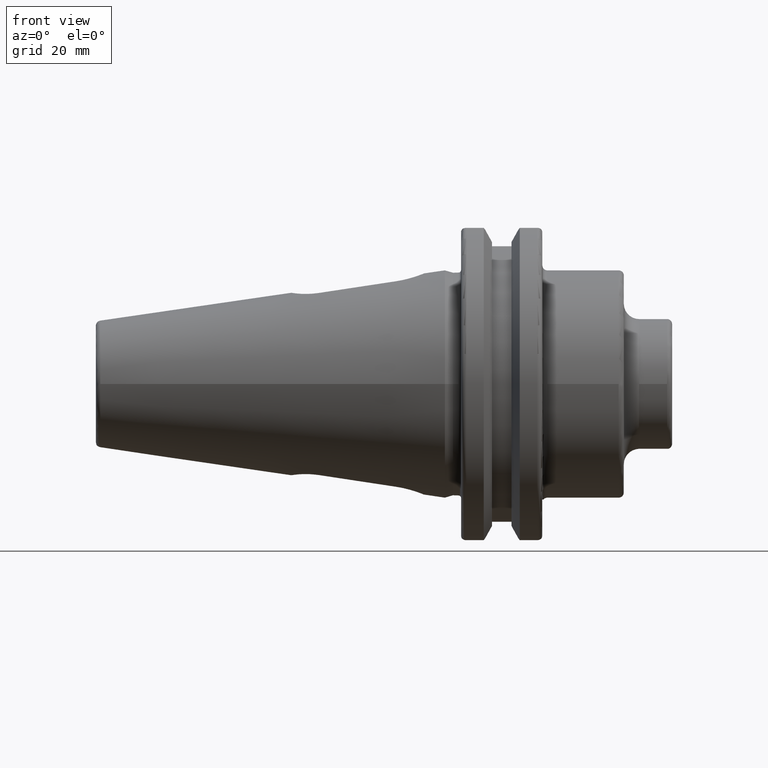
[diagram: clean part render]
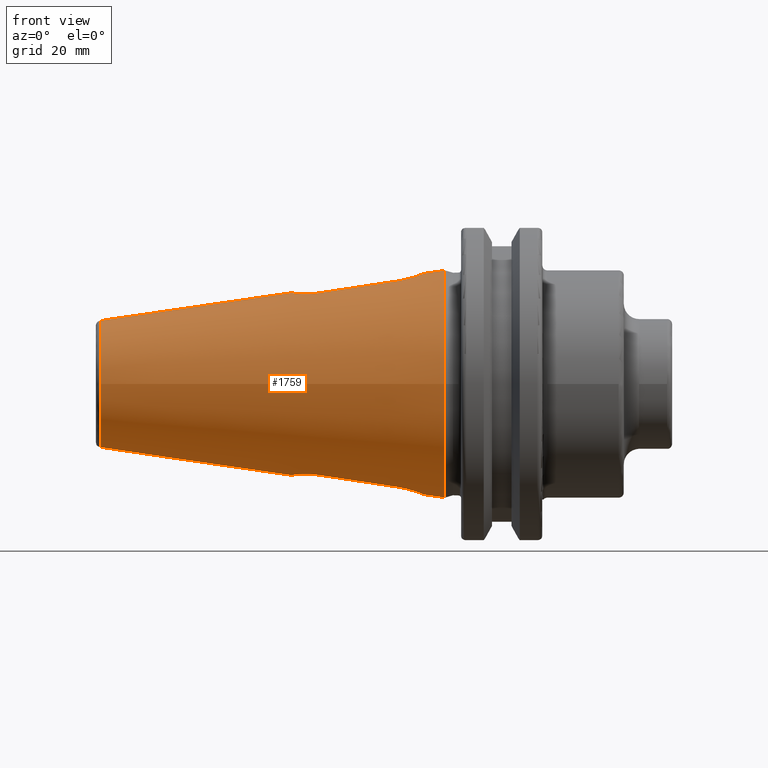
[diagram: same view with one face highlighted and labeled with its STEP entity id]
A machine part, front view. The second image highlights one B-rep face of the part: STEP entity #1759.
In plain terms, the highlighted conical surface has half-angle 8.297 deg.
Its self-contained STEP definition (entity closure, byte-faithful):
#54=B_SPLINE_CURVE_WITH_KNOTS('',3,(#2617,#2618,#2619,#2620,#2621,#2622,
#2623,#2624,#2625,#2626,#2627,#2628,#2629,#2630,#2631,#2632),
 .UNSPECIFIED.,.F.,.F.,(4,1,1,1,1,1,1,1,1,1,1,1,1,4),(-0.0123519125982872,
0.201255076014861,0.308058570321434,0.414862064628008,0.441562938204652,
0.468263811781295,0.521665558934582,0.628469053241156,0.842076041854304,
1.05568303046745,1.16248652477403,1.2692900190806,1.37609351338717,1.48289700769375),
 .UNSPECIFIED.);
#55=B_SPLINE_CURVE_WITH_KNOTS('',3,(#2653,#2654,#2655,#2656),
 .UNSPECIFIED.,.F.,.F.,(4,4),(-1.50986991400813,2.03190332548004E-19),
 .UNSPECIFIED.);
#57=B_SPLINE_CURVE_WITH_KNOTS('',3,(#2679,#2680,#2681,#2682),
 .UNSPECIFIED.,.F.,.F.,(4,4),(-0.0196501908359874,-0.0123519125978383),
 .UNSPECIFIED.);
#59=B_SPLINE_CURVE_WITH_KNOTS('',3,(#2751,#2752,#2753,#2754,#2755,#2756,
#2757,#2758,#2759,#2760,#2761,#2762,#2763,#2764,#2765),.UNSPECIFIED.,.F.,
 .F.,(4,1,1,1,1,1,1,1,1,1,1,1,4),(-1.55043115547203,-1.4409428105883,-1.33145446570457,
-1.22196612082084,-1.11247777593711,-0.893501086169657,-0.674524396402201,
-0.565036051518473,-0.510291879076609,-0.455547706634745,-0.346059361751017,
-0.236571016867289,-0.017594327099833),.UNSPECIFIED.);
#61=B_SPLINE_CURVE_WITH_KNOTS('',3,(#2799,#2800,#2801,#2802),
 .UNSPECIFIED.,.F.,.F.,(4,4),(-1.51695230666796,-1.50986991400813),
 .UNSPECIFIED.);
#64=B_SPLINE_CURVE_WITH_KNOTS('',3,(#2833,#2834,#2835,#2836),
 .UNSPECIFIED.,.F.,.F.,(4,4),(-1.51695230666796,-0.00708239265984782),
 .UNSPECIFIED.);
#65=B_SPLINE_CURVE_WITH_KNOTS('',3,(#2853,#2854,#2855,#2856),
 .UNSPECIFIED.,.F.,.F.,(4,4),(-0.00708239265984786,-2.44925103500931E-15),
 .UNSPECIFIED.);
#67=B_SPLINE_CURVE_WITH_KNOTS('',3,(#2877,#2878,#2879,#2880),
 .UNSPECIFIED.,.F.,.F.,(4,4),(1.48289700769375,1.49019528623546),
 .UNSPECIFIED.);
#69=B_SPLINE_CURVE_WITH_KNOTS('',3,(#2909,#2910,#2911,#2912),
 .UNSPECIFIED.,.F.,.F.,(4,4),(-1.51695230666796,-0.00708239265984366),
 .UNSPECIFIED.);
#70=B_SPLINE_CURVE_WITH_KNOTS('',3,(#2914,#2915,#2916,#2917),
 .UNSPECIFIED.,.F.,.F.,(4,4),(1.48289700769375,1.49019528623546),
 .UNSPECIFIED.);
#71=B_SPLINE_CURVE_WITH_KNOTS('',3,(#2919,#2920,#2921,#2922,#2923,#2924,
#2925,#2926,#2927,#2928,#2929,#2930,#2931,#2932,#2933,#2934),
 .UNSPECIFIED.,.F.,.F.,(4,1,1,1,1,1,1,1,1,1,1,1,1,4),(-0.0123519125982868,
0.201255076014861,0.308058570321435,0.414862064628009,0.441562938204652,
0.468263811781296,0.521665558934583,0.628469053241157,0.842076041854304,
1.05568303046745,1.16248652477403,1.2692900190806,1.37609351338717,1.48289700769375),
 .UNSPECIFIED.);
#72=B_SPLINE_CURVE_WITH_KNOTS('',3,(#2936,#2937,#2938,#2939),
 .UNSPECIFIED.,.F.,.F.,(4,4),(-0.0196501908359874,-0.01235191259784),
 .UNSPECIFIED.);
#73=B_SPLINE_CURVE_WITH_KNOTS('',3,(#2941,#2942,#2943,#2944),
 .UNSPECIFIED.,.F.,.F.,(4,4),(-1.5098699140081,2.77555756156289E-17),
 .UNSPECIFIED.);
#74=B_SPLINE_CURVE_WITH_KNOTS('',3,(#2946,#2947,#2948,#2949),
 .UNSPECIFIED.,.F.,.F.,(4,4),(-1.51695230666796,-1.5098699140081),
 .UNSPECIFIED.);
#75=B_SPLINE_CURVE_WITH_KNOTS('',3,(#2951,#2952,#2953,#2954,#2955,#2956,
#2957,#2958,#2959,#2960,#2961,#2962,#2963),.UNSPECIFIED.,.F.,.F.,(4,1,1,
1,1,1,1,1,1,1,4),(-1.55043115547203,-1.33145446570457,-1.22196612082084,
-1.11247777593711,-1.00298943105339,-0.893501086169658,-0.674524396402201,
-0.455547706634745,-0.346059361751017,-0.236571016867289,-0.0175943270998329),
 .UNSPECIFIED.);
#76=B_SPLINE_CURVE_WITH_KNOTS('',3,(#2964,#2965,#2966,#2967),
 .UNSPECIFIED.,.F.,.F.,(4,4),(-0.00708239265984363,-2.42304759410301E-15),
 .UNSPECIFIED.);
#146=LINE('',#2903,#271);
#271=VECTOR('',#2114,17.2484375);
#380=CONICAL_SURFACE('',#1897,17.2484375,0.144812498238939);
#392=FACE_BOUND('',#565,.T.);
#393=FACE_BOUND('',#566,.T.);
#461=FACE_OUTER_BOUND('',#564,.T.);
#564=EDGE_LOOP('',(#1273,#1274,#1275,#1276,#1277));
#565=EDGE_LOOP('',(#1278,#1279,#1280,#1281,#1282,#1283,#1284,#1285));
#566=EDGE_LOOP('',(#1286,#1287,#1288,#1289,#1290,#1291,#1292,#1293));
#674=CIRCLE('',#1898,22.225);
#675=CIRCLE('',#1899,12.3966635780937);
#676=CIRCLE('',#1900,12.3966635780937);
#744=VERTEX_POINT('',#2595);
#747=VERTEX_POINT('',#2615);
#749=VERTEX_POINT('',#2650);
#750=VERTEX_POINT('',#2652);
#753=VERTEX_POINT('',#2748);
#754=VERTEX_POINT('',#2750);
#756=VERTEX_POINT('',#2823);
#759=VERTEX_POINT('',#2831);
#764=VERTEX_POINT('',#2900);
#765=VERTEX_POINT('',#2902);
#766=VERTEX_POINT('',#2904);
#767=VERTEX_POINT('',#2907);
#768=VERTEX_POINT('',#2908);
#769=VERTEX_POINT('',#2913);
#770=VERTEX_POINT('',#2918);
#771=VERTEX_POINT('',#2935);
#772=VERTEX_POINT('',#2940);
#773=VERTEX_POINT('',#2945);
#774=VERTEX_POINT('',#2950);
#934=EDGE_CURVE('',#747,#744,#54,.T.);
#936=EDGE_CURVE('',#749,#750,#55,.T.);
#939=EDGE_CURVE('',#750,#747,#57,.T.);
#942=EDGE_CURVE('',#753,#754,#59,.T.);
#945=EDGE_CURVE('',#754,#749,#61,.T.);
#950=EDGE_CURVE('',#759,#756,#64,.T.);
#951=EDGE_CURVE('',#756,#753,#65,.T.);
#953=EDGE_CURVE('',#744,#759,#67,.T.);
#962=EDGE_CURVE('',#764,#764,#674,.T.);
#963=EDGE_CURVE('',#764,#765,#146,.T.);
#964=EDGE_CURVE('',#766,#765,#675,.T.);
#965=EDGE_CURVE('',#765,#766,#676,.T.);
#966=EDGE_CURVE('',#767,#768,#69,.T.);
#967=EDGE_CURVE('',#769,#767,#70,.T.);
#968=EDGE_CURVE('',#770,#769,#71,.T.);
#969=EDGE_CURVE('',#771,#770,#72,.T.);
#970=EDGE_CURVE('',#772,#771,#73,.T.);
#971=EDGE_CURVE('',#773,#772,#74,.T.);
#972=EDGE_CURVE('',#774,#773,#75,.T.);
#973=EDGE_CURVE('',#768,#774,#76,.T.);
#1273=ORIENTED_EDGE('',*,*,#962,.F.);
#1274=ORIENTED_EDGE('',*,*,#963,.T.);
#1275=ORIENTED_EDGE('',*,*,#964,.F.);
#1276=ORIENTED_EDGE('',*,*,#965,.F.);
#1277=ORIENTED_EDGE('',*,*,#963,.F.);
#1278=ORIENTED_EDGE('',*,*,#966,.F.);
#1279=ORIENTED_EDGE('',*,*,#967,.F.);
#1280=ORIENTED_EDGE('',*,*,#968,.F.);
#1281=ORIENTED_EDGE('',*,*,#969,.F.);
#1282=ORIENTED_EDGE('',*,*,#970,.F.);
#1283=ORIENTED_EDGE('',*,*,#971,.F.);
#1284=ORIENTED_EDGE('',*,*,#972,.F.);
#1285=ORIENTED_EDGE('',*,*,#973,.F.);
#1286=ORIENTED_EDGE('',*,*,#950,.F.);
#1287=ORIENTED_EDGE('',*,*,#953,.F.);
#1288=ORIENTED_EDGE('',*,*,#934,.F.);
#1289=ORIENTED_EDGE('',*,*,#939,.F.);
#1290=ORIENTED_EDGE('',*,*,#936,.F.);
#1291=ORIENTED_EDGE('',*,*,#945,.F.);
#1292=ORIENTED_EDGE('',*,*,#942,.F.);
#1293=ORIENTED_EDGE('',*,*,#951,.F.);
#1759=ADVANCED_FACE('',(#461,#392,#393),#380,.T.);
#1897=AXIS2_PLACEMENT_3D('',#2899,#2110,#2111);
#1898=AXIS2_PLACEMENT_3D('',#2901,#2112,#2113);
#1899=AXIS2_PLACEMENT_3D('',#2905,#2115,#2116);
#1900=AXIS2_PLACEMENT_3D('',#2906,#2117,#2118);
#2110=DIRECTION('center_axis',(1.,0.,0.));
#2111=DIRECTION('ref_axis',(0.,1.,0.));
#2112=DIRECTION('center_axis',(1.,0.,0.));
#2113=DIRECTION('ref_axis',(0.,0.,-1.));
#2114=DIRECTION('',(-0.989532981063282,0.144306893071729,1.76724974695192E-17));
#2115=DIRECTION('center_axis',(-1.,0.,0.));
#2116=DIRECTION('ref_axis',(0.,-1.,3.06161699786838E-17));
#2117=DIRECTION('center_axis',(-1.,0.,0.));
#2118=DIRECTION('ref_axis',(0.,-1.,3.06161699786838E-17));
#2595=CARTESIAN_POINT('',(-24.609438286932,-5.47966883575731,17.8123084314494));
#2615=CARTESIAN_POINT('',(-24.609438281905,5.47966883583161,17.8123084321936));
#2617=CARTESIAN_POINT('Ctrl Pts',(-24.6094382819001,5.47966883583168,17.8123084321943));
#2618=CARTESIAN_POINT('Ctrl Pts',(-25.3910173010212,5.4681176180221,17.6966101427255));
#2619=CARTESIAN_POINT('Ctrl Pts',(-26.6366362257551,5.18932826370859,17.5978572982954));
#2620=CARTESIAN_POINT('Ctrl Pts',(-28.0539606896801,4.27401284389482,17.6284725574422));
#2621=CARTESIAN_POINT('Ctrl Pts',(-28.6699850629346,3.65063879567596,17.6741444632496));
#2622=CARTESIAN_POINT('Ctrl Pts',(-29.0370472995205,3.16559152548821,17.7101407156047));
#2623=CARTESIAN_POINT('Ctrl Pts',(-29.2643391444825,2.82500918679637,17.7348019064094));
#2624=CARTESIAN_POINT('Ctrl Pts',(-29.618094783023,2.19361484216065,17.7780989120638));
#2625=CARTESIAN_POINT('Ctrl Pts',(-30.0908235017568,0.796047538798844,17.8498433964871));
#2626=CARTESIAN_POINT('Ctrl Pts',(-30.1042933254347,-1.19963101926437,17.85148924162));
#2627=CARTESIAN_POINT('Ctrl Pts',(-29.1606585326775,-3.16811472007907,17.7106484989984));
#2628=CARTESIAN_POINT('Ctrl Pts',(-28.0477183108963,-4.27249476916475,17.6278062106077));
#2629=CARTESIAN_POINT('Ctrl Pts',(-26.9930166118569,-4.96101837429142,17.6060682132439));
#2630=CARTESIAN_POINT('Ctrl Pts',(-25.8008710617898,-5.3777623210726,17.6614942662507));
#2631=CARTESIAN_POINT('Ctrl Pts',(-25.0002278030062,-5.47389322640179,17.7544592858598));
#2632=CARTESIAN_POINT('Ctrl Pts',(-24.609438286932,-5.47966883575731,17.8123084314494));
#2650=CARTESIAN_POINT('',(-9.6057753131793,5.48423485378346,20.0890197562323));
#2652=CARTESIAN_POINT('',(-24.5291871491409,5.48027446130217,17.8243664390798));
#2653=CARTESIAN_POINT('Ctrl Pts',(-9.6057753131793,5.48423485378346,20.0890197562323));
#2654=CARTESIAN_POINT('Ctrl Pts',(-14.8821259780759,5.48305410484598,19.2917163704081));
#2655=CARTESIAN_POINT('Ctrl Pts',(-19.8403889961416,5.4817456272795,18.5392869860025));
#2656=CARTESIAN_POINT('Ctrl Pts',(-24.5291871491409,5.48027446130217,17.8243664390798));
#2679=CARTESIAN_POINT('Ctrl Pts',(-24.5291871491409,5.48027446130217,17.8243664390798));
#2680=CARTESIAN_POINT('Ctrl Pts',(-24.5559819517814,5.48026605411535,17.8202809241283));
#2681=CARTESIAN_POINT('Ctrl Pts',(-24.5827341877006,5.48006350457403,17.8162614784572));
#2682=CARTESIAN_POINT('Ctrl Pts',(-24.609438281905,5.47966883583161,17.8123084321936));
#2748=CARTESIAN_POINT('',(-9.53150443108636,-5.48425146102837,20.1002425339266));
#2750=CARTESIAN_POINT('',(-9.53150443108636,5.48425146102838,20.1002425339266));
#2751=CARTESIAN_POINT('Ctrl Pts',(-9.53150443108636,-5.48425146102837,20.1002425339266));
#2752=CARTESIAN_POINT('Ctrl Pts',(-9.13008180366078,-5.48434114935574,20.1608987693671));
#2753=CARTESIAN_POINT('Ctrl Pts',(-8.30684125519584,-5.39400662871127,20.3098216400745));
#2754=CARTESIAN_POINT('Ctrl Pts',(-7.12013099509715,-4.98410255752563,20.5954977448902));
#2755=CARTESIAN_POINT('Ctrl Pts',(-6.08217225271021,-4.31767969249508,20.9003584870048));
#2756=CARTESIAN_POINT('Ctrl Pts',(-4.96841481059959,-3.22820931523746,21.2740943133863));
#2757=CARTESIAN_POINT('Ctrl Pts',(-3.99481545471671,-1.24238386155259,21.6567180299421));
#2758=CARTESIAN_POINT('Ctrl Pts',(-4.0090507163468,0.825209387271971,21.6514951841606));
#2759=CARTESIAN_POINT('Ctrl Pts',(-4.49736036030126,2.24113236227767,21.458514884459));
#2760=CARTESIAN_POINT('Ctrl Pts',(-4.90682233734287,2.96705974186681,21.3058296488352));
#2761=CARTESIAN_POINT('Ctrl Pts',(-5.38960093373319,3.63632314200813,21.1326336655286));
#2762=CARTESIAN_POINT('Ctrl Pts',(-6.07820990459896,4.31812590866915,20.9020718340145));
#2763=CARTESIAN_POINT('Ctrl Pts',(-7.4686746022636,5.20631209686785,20.4920899760941));
#2764=CARTESIAN_POINT('Ctrl Pts',(-8.72865917623519,5.48443083768311,20.2215550048076));
#2765=CARTESIAN_POINT('Ctrl Pts',(-9.53150443108636,5.48425146102838,20.1002425339266));
#2799=CARTESIAN_POINT('Ctrl Pts',(-9.53150443108638,5.48425146102838,20.1002425339266));
#2800=CARTESIAN_POINT('Ctrl Pts',(-9.55626841605969,5.48424592810562,20.0965006170531));
#2801=CARTESIAN_POINT('Ctrl Pts',(-9.58102537487465,5.48424039235836,20.092759691438));
#2802=CARTESIAN_POINT('Ctrl Pts',(-9.6057753131793,5.48423485378346,20.0890197562323));
#2823=CARTESIAN_POINT('',(-9.6057753131793,-5.48423485378345,20.0890197562323));
#2831=CARTESIAN_POINT('',(-24.5291871491409,-5.48027446130216,17.8243664390798));
#2833=CARTESIAN_POINT('Ctrl Pts',(-24.5291871491409,-5.48027446130216,17.8243664390798));
#2834=CARTESIAN_POINT('Ctrl Pts',(-19.8403889960913,-5.48174562727952,18.5392869860102));
#2835=CARTESIAN_POINT('Ctrl Pts',(-14.8821259780644,-5.48305410484597,19.2917163704099));
#2836=CARTESIAN_POINT('Ctrl Pts',(-9.6057753131793,-5.48423485378345,20.0890197562323));
#2853=CARTESIAN_POINT('Ctrl Pts',(-9.6057753131793,-5.48423485378345,20.0890197562323));
#2854=CARTESIAN_POINT('Ctrl Pts',(-9.58102537487465,-5.48424039235835,20.092759691438));
#2855=CARTESIAN_POINT('Ctrl Pts',(-9.55626841605969,-5.48424592810561,20.0965006170531));
#2856=CARTESIAN_POINT('Ctrl Pts',(-9.53150443108638,-5.48425146102837,20.1002425339266));
#2877=CARTESIAN_POINT('Ctrl Pts',(-24.609438286932,-5.47966883575731,17.8123084314494));
#2878=CARTESIAN_POINT('Ctrl Pts',(-24.5827341911717,-5.48006350454693,17.8162614779359));
#2879=CARTESIAN_POINT('Ctrl Pts',(-24.5559819535715,-5.48026605411478,17.8202809238554));
#2880=CARTESIAN_POINT('Ctrl Pts',(-24.5291871491409,-5.48027446130216,17.8243664390798));
#2899=CARTESIAN_POINT('Origin',(-34.125,0.,0.));
#2900=CARTESIAN_POINT('',(0.,-22.225,-2.72177751110499E-15));
#2901=CARTESIAN_POINT('Origin',(0.,0.,0.));
#2902=CARTESIAN_POINT('',(-67.3943068930717,-12.3966635780937,-1.5181534371019E-15));
#2903=CARTESIAN_POINT('',(-34.125,-17.2484375,-2.11232437746682E-15));
#2904=CARTESIAN_POINT('',(-67.3943068930717,-1.5181534371019E-15,12.3966635780937));
#2905=CARTESIAN_POINT('Origin',(-67.3943068930717,0.,-1.89769179637738E-15));
#2906=CARTESIAN_POINT('Origin',(-67.3943068930717,0.,-1.89769179637738E-15));
#2907=CARTESIAN_POINT('',(-24.5291871491409,5.48027446130217,-17.8243664390798));
#2908=CARTESIAN_POINT('',(-9.60577531317931,5.48423485378345,-20.0890197562323));
#2909=CARTESIAN_POINT('Ctrl Pts',(-24.5291871491409,5.48027446130217,-17.8243664390798));
#2910=CARTESIAN_POINT('Ctrl Pts',(-19.8403889960857,5.48174562727952,-18.5392869860111));
#2911=CARTESIAN_POINT('Ctrl Pts',(-14.8821259780677,5.48305410484598,-19.2917163704094));
#2912=CARTESIAN_POINT('Ctrl Pts',(-9.6057753131793,5.48423485378345,-20.0890197562323));
#2913=CARTESIAN_POINT('',(-24.609438286932,5.47966883575731,-17.8123084314494));
#2914=CARTESIAN_POINT('Ctrl Pts',(-24.609438286932,5.47966883575731,-17.8123084314494));
#2915=CARTESIAN_POINT('Ctrl Pts',(-24.5827341911717,5.48006350454693,-17.8162614779359));
#2916=CARTESIAN_POINT('Ctrl Pts',(-24.5559819535715,5.48026605411478,-17.8202809238554));
#2917=CARTESIAN_POINT('Ctrl Pts',(-24.5291871491409,5.48027446130216,-17.8243664390798));
#2918=CARTESIAN_POINT('',(-24.609438281905,-5.47966883583161,-17.8123084321936));
#2919=CARTESIAN_POINT('Ctrl Pts',(-24.6094382819001,-5.47966883583168,-17.8123084321943));
#2920=CARTESIAN_POINT('Ctrl Pts',(-25.3910173010213,-5.46811761802209,-17.6966101427255));
#2921=CARTESIAN_POINT('Ctrl Pts',(-26.6366362257551,-5.18932826370859,-17.5978572982954));
#2922=CARTESIAN_POINT('Ctrl Pts',(-28.0539606896801,-4.27401284389482,-17.6284725574422));
#2923=CARTESIAN_POINT('Ctrl Pts',(-28.6699850629346,-3.65063879567596,-17.6741444632496));
#2924=CARTESIAN_POINT('Ctrl Pts',(-29.0370472995205,-3.16559152548821,-17.7101407156047));
#2925=CARTESIAN_POINT('Ctrl Pts',(-29.2643391444825,-2.82500918679637,-17.7348019064094));
#2926=CARTESIAN_POINT('Ctrl Pts',(-29.618094783023,-2.19361484216065,-17.7780989120638));
#2927=CARTESIAN_POINT('Ctrl Pts',(-30.0908235017569,-0.796047538798843,
-17.8498433964871));
#2928=CARTESIAN_POINT('Ctrl Pts',(-30.1042933254347,1.19963101926439,-17.85148924162));
#2929=CARTESIAN_POINT('Ctrl Pts',(-29.1606585326775,3.16811472007908,-17.7106484989984));
#2930=CARTESIAN_POINT('Ctrl Pts',(-28.0477183108963,4.27249476916476,-17.6278062106077));
#2931=CARTESIAN_POINT('Ctrl Pts',(-26.9930166118569,4.96101837429142,-17.6060682132439));
#2932=CARTESIAN_POINT('Ctrl Pts',(-25.8008710617898,5.3777623210726,-17.6614942662507));
#2933=CARTESIAN_POINT('Ctrl Pts',(-25.0002278030062,5.47389322640179,-17.7544592858598));
#2934=CARTESIAN_POINT('Ctrl Pts',(-24.609438286932,5.47966883575731,-17.8123084314494));
#2935=CARTESIAN_POINT('',(-24.5291871491409,-5.48027446130217,-17.8243664390798));
#2936=CARTESIAN_POINT('Ctrl Pts',(-24.5291871491409,-5.48027446130216,-17.8243664390798));
#2937=CARTESIAN_POINT('Ctrl Pts',(-24.5559819517814,-5.48026605411535,-17.8202809241283));
#2938=CARTESIAN_POINT('Ctrl Pts',(-24.5827341877006,-5.48006350457403,-17.8162614784572));
#2939=CARTESIAN_POINT('Ctrl Pts',(-24.609438281905,-5.47966883583161,-17.8123084321936));
#2940=CARTESIAN_POINT('',(-9.6057753131793,-5.48423485378345,-20.0890197562323));
#2941=CARTESIAN_POINT('Ctrl Pts',(-9.6057753131793,-5.48423485378345,-20.0890197562323));
#2942=CARTESIAN_POINT('Ctrl Pts',(-14.882125978054,-5.48305410484598,-19.2917163704115));
#2943=CARTESIAN_POINT('Ctrl Pts',(-19.8403889960998,-5.48174562727952,-18.5392869860089));
#2944=CARTESIAN_POINT('Ctrl Pts',(-24.5291871491409,-5.48027446130217,-17.8243664390798));
#2945=CARTESIAN_POINT('',(-9.53150443108636,-5.48425146102838,-20.1002425339266));
#2946=CARTESIAN_POINT('Ctrl Pts',(-9.53150443108639,-5.48425146102837,-20.1002425339266));
#2947=CARTESIAN_POINT('Ctrl Pts',(-9.55626841605969,-5.48424592810561,-20.0965006170531));
#2948=CARTESIAN_POINT('Ctrl Pts',(-9.58102537487465,-5.48424039235836,-20.092759691438));
#2949=CARTESIAN_POINT('Ctrl Pts',(-9.6057753131793,-5.48423485378346,-20.0890197562323));
#2950=CARTESIAN_POINT('',(-9.53150443108636,5.48425146102837,-20.1002425339266));
#2951=CARTESIAN_POINT('Ctrl Pts',(-9.53150443108636,5.48425146102837,-20.1002425339266));
#2952=CARTESIAN_POINT('Ctrl Pts',(-8.72865917623519,5.48443083768311,-20.2215550048076));
#2953=CARTESIAN_POINT('Ctrl Pts',(-7.46853257029915,5.20538058745007,-20.4922091091833));
#2954=CARTESIAN_POINT('Ctrl Pts',(-6.07951744878118,4.31940868357822,-20.9016440501016));
#2955=CARTESIAN_POINT('Ctrl Pts',(-5.25093515593319,3.49728427189358,-21.179193599395));
#2956=CARTESIAN_POINT('Ctrl Pts',(-4.56727781113693,2.44153806483432,-21.4309804236527));
#2957=CARTESIAN_POINT('Ctrl Pts',(-4.01327664123625,0.82715351039765,-21.6503351749215));
#2958=CARTESIAN_POINT('Ctrl Pts',(-3.99680986862102,-1.23956344750787,-21.6555063804213));
#2959=CARTESIAN_POINT('Ctrl Pts',(-4.96222794113225,-3.23197223117006,-21.27596423657));
#2960=CARTESIAN_POINT('Ctrl Pts',(-6.08086749684072,-4.3185637884493,-20.9011394523323));
#2961=CARTESIAN_POINT('Ctrl Pts',(-7.4648568714755,-5.20796731031733,-20.49344347143));
#2962=CARTESIAN_POINT('Ctrl Pts',(-8.72865917623516,-5.48443083768311,-20.2215550048076));
#2963=CARTESIAN_POINT('Ctrl Pts',(-9.53150443108636,-5.48425146102838,-20.1002425339266));
#2964=CARTESIAN_POINT('Ctrl Pts',(-9.6057753131793,5.48423485378345,-20.0890197562323));
#2965=CARTESIAN_POINT('Ctrl Pts',(-9.58102537487465,5.48424039235835,-20.092759691438));
#2966=CARTESIAN_POINT('Ctrl Pts',(-9.55626841605969,5.48424592810561,-20.0965006170531));
#2967=CARTESIAN_POINT('Ctrl Pts',(-9.53150443108638,5.48425146102837,-20.1002425339266));